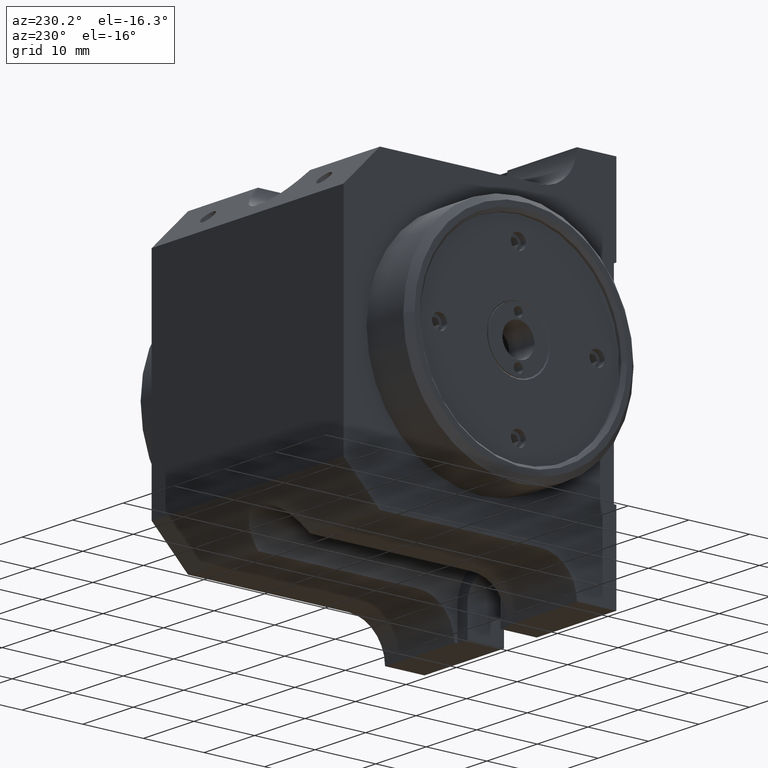
[diagram: clean part render]
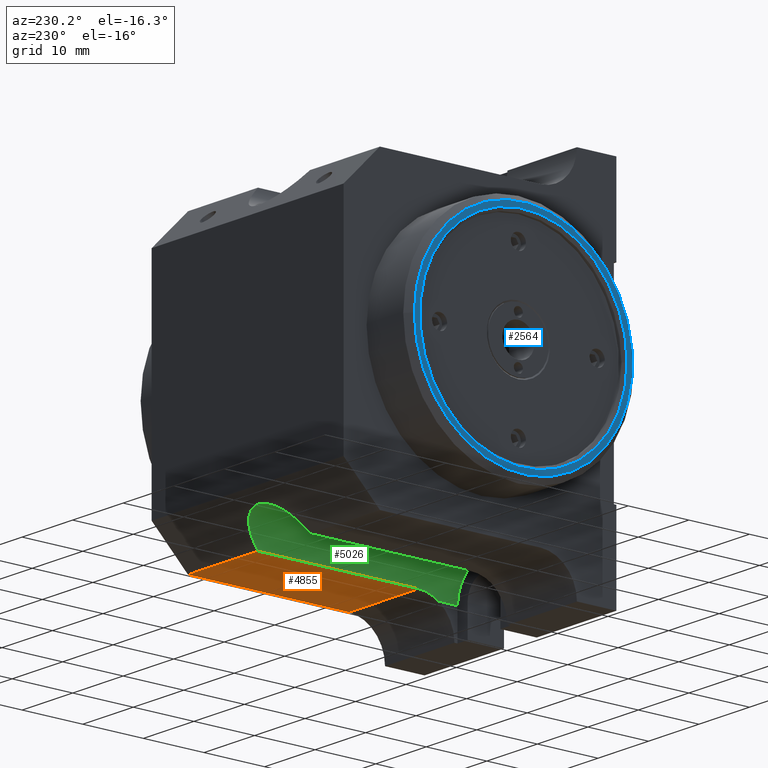
[diagram: same view with three faces highlighted in distinct colors, each labeled with its STEP entity id]
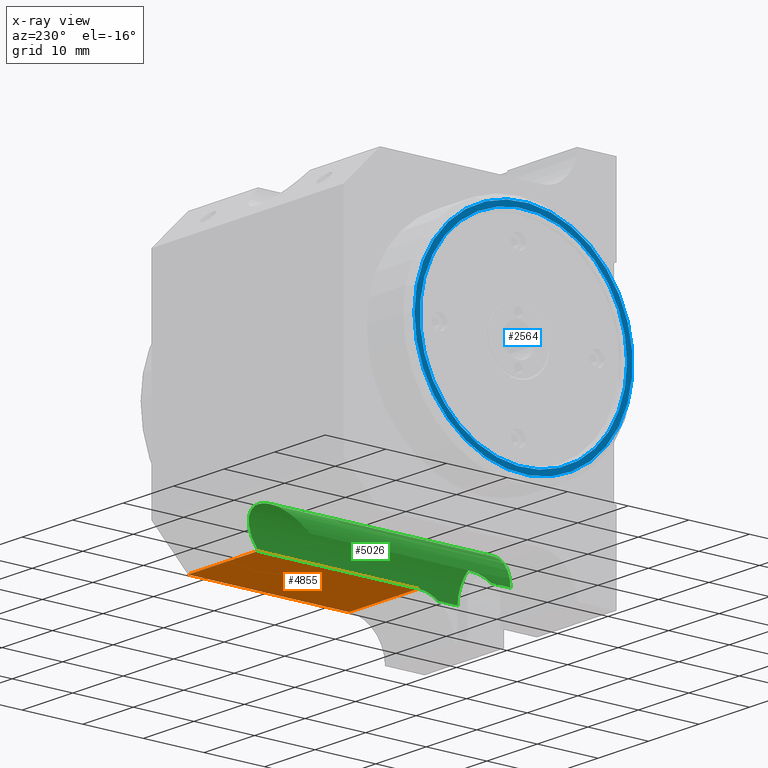
[diagram: x-ray of the same camera — body ghosted, the three highlighted faces saturated]
A machine part, auxiliary view with three faces highlighted in distinct colors.
The next image is the same camera in x-ray (body ghosted, the three faces saturated) — at least one of them is partly hidden behind the body in this view.
Their STEP definitions:

[orange] entity #4855 — the highlighted planar face has unit normal (0, 0, -1).
#123 = VERTEX_POINT ( 'NONE', #3841 ) ;
#297 = LINE ( 'NONE', #4854, #6377 ) ;
#329 = VECTOR ( 'NONE', #2164, 1000.000000000000000 ) ;
#386 = ORIENTED_EDGE ( 'NONE', *, *, #3984, .F. ) ;
#454 = VECTOR ( 'NONE', #4082, 1000.000000000000000 ) ;
#527 = VERTEX_POINT ( 'NONE', #5717 ) ;
#553 = VERTEX_POINT ( 'NONE', #2233 ) ;
#589 = EDGE_CURVE ( 'NONE', #5898, #527, #1663, .T. ) ;
#635 = LINE ( 'NONE', #2616, #454 ) ;
#719 = EDGE_LOOP ( 'NONE', ( #6045, #1636, #386, #6524 ) ) ;
#1450 = EDGE_CURVE ( 'NONE', #527, #553, #635, .T. ) ;
#1459 = AXIS2_PLACEMENT_3D ( 'NONE', #1907, #4555, #1942 ) ;
#1636 = ORIENTED_EDGE ( 'NONE', *, *, #1450, .T. ) ;
#1663 = LINE ( 'NONE', #5212, #329 ) ;
#1877 = PLANE ( 'NONE',  #1459 ) ;
#1907 = CARTESIAN_POINT ( 'NONE',  ( -19.00000000000000000, -12.69999999999999929, -24.00000000000000000 ) ) ;
#1942 = DIRECTION ( 'NONE',  ( -1.000000000000000000, 0.000000000000000000, -0.000000000000000000 ) ) ;
#2164 = DIRECTION ( 'NONE',  ( -1.000000000000000000, 0.000000000000000000, -0.000000000000000000 ) ) ;
#2233 = CARTESIAN_POINT ( 'NONE',  ( 5.153882032022035986, 16.80000000000000071, -24.00000000000000000 ) ) ;
#2616 = CARTESIAN_POINT ( 'NONE',  ( 5.153882032021997794, -12.69999999999999929, -24.00000000000000000 ) ) ;
#2753 = EDGE_CURVE ( 'NONE', #5898, #123, #6097, .T. ) ;
#3540 = DIRECTION ( 'NONE',  ( -0.000000000000000000, 1.000000000000000000, 0.000000000000000000 ) ) ;
#3666 = VECTOR ( 'NONE', #3540, 1000.000000000000000 ) ;
#3841 = CARTESIAN_POINT ( 'NONE',  ( 19.00000000000000355, 16.80000000000000071, -24.00000000000000355 ) ) ;
#3984 = EDGE_CURVE ( 'NONE', #123, #553, #297, .T. ) ;
#4082 = DIRECTION ( 'NONE',  ( 0.000000000000000000, 1.000000000000000000, 0.000000000000000000 ) ) ;
#4555 = DIRECTION ( 'NONE',  ( 0.000000000000000000, 0.000000000000000000, -1.000000000000000000 ) ) ;
#4854 = CARTESIAN_POINT ( 'NONE',  ( 0.000000000000000000, 16.80000000000000071, -24.00000000000000000 ) ) ;
#4855 = ADVANCED_FACE ( 'NONE', ( #5021 ), #1877, .T. ) ;
#5021 = FACE_OUTER_BOUND ( 'NONE', #719, .T. ) ;
#5212 = CARTESIAN_POINT ( 'NONE',  ( -19.00000000000000000, -9.700000000000001066, -24.00000000000000000 ) ) ;
#5481 = CARTESIAN_POINT ( 'NONE',  ( 19.00000000000000000, -9.700000000000001066, -24.00000000000000000 ) ) ;
#5717 = CARTESIAN_POINT ( 'NONE',  ( 5.153882032022036874, -9.700000000000001066, -24.00000000000000000 ) ) ;
#5898 = VERTEX_POINT ( 'NONE', #5481 ) ;
#6045 = ORIENTED_EDGE ( 'NONE', *, *, #589, .T. ) ;
#6097 = LINE ( 'NONE', #6515, #3666 ) ;
#6337 = DIRECTION ( 'NONE',  ( -1.000000000000000000, 0.000000000000000000, -0.000000000000000000 ) ) ;
#6377 = VECTOR ( 'NONE', #6337, 1000.000000000000000 ) ;
#6515 = CARTESIAN_POINT ( 'NONE',  ( 19.00000000000000000, 0.000000000000000000, -24.00000000000000000 ) ) ;
#6524 = ORIENTED_EDGE ( 'NONE', *, *, #2753, .F. ) ;

[blue] entity #2564 — the highlighted planar face has unit normal (1, 0, 0).
#71 = CARTESIAN_POINT ( 'NONE',  ( -27.25000000000003908, -6.952563808119000396E-14, 0.000000000000000000 ) ) ;
#233 = EDGE_LOOP ( 'NONE', ( #3418 ) ) ;
#237 = DIRECTION ( 'NONE',  ( 0.000000000000000000, 1.000000000000000000, 0.000000000000000000 ) ) ;
#331 = CARTESIAN_POINT ( 'NONE',  ( -27.25000000000000000, 0.000000000000000000, 0.000000000000000000 ) ) ;
#357 = CIRCLE ( 'NONE', #6140, 18.00000616290476785 ) ;
#806 = AXIS2_PLACEMENT_3D ( 'NONE', #71, #5230, #5662 ) ;
#867 = FACE_OUTER_BOUND ( 'NONE', #233, .T. ) ;
#1658 = ORIENTED_EDGE ( 'NONE', *, *, #4686, .T. ) ;
#1748 = FACE_BOUND ( 'NONE', #3462, .T. ) ;
#1986 = CIRCLE ( 'NONE', #806, 17.09999999999996234 ) ;
#2042 = VERTEX_POINT ( 'NONE', #6587 ) ;
#2112 = VERTEX_POINT ( 'NONE', #4144 ) ;
#2564 = ADVANCED_FACE ( 'NONE', ( #1748, #867 ), #3352, .F. ) ;
#2591 = EDGE_CURVE ( 'NONE', #2042, #2042, #357, .T. ) ;
#2780 = CARTESIAN_POINT ( 'NONE',  ( -27.25000000000476774, 9.130064163756017171E-17, 0.000000000000000000 ) ) ;
#2874 = DIRECTION ( 'NONE',  ( 0.000000000000000000, 0.000000000000000000, -1.000000000000000000 ) ) ;
#3352 = PLANE ( 'NONE',  #4535 ) ;
#3418 = ORIENTED_EDGE ( 'NONE', *, *, #2591, .F. ) ;
#3462 = EDGE_LOOP ( 'NONE', ( #1658 ) ) ;
#4144 = CARTESIAN_POINT ( 'NONE',  ( -27.25000000000003908, -17.10000000000003340, 0.000000000000000000 ) ) ;
#4382 = DIRECTION ( 'NONE',  ( 1.000000000000000000, -9.130123557770168631E-17, 0.000000000000000000 ) ) ;
#4535 = AXIS2_PLACEMENT_3D ( 'NONE', #331, #4858, #2874 ) ;
#4686 = EDGE_CURVE ( 'NONE', #2112, #2112, #1986, .T. ) ;
#4858 = DIRECTION ( 'NONE',  ( 1.000000000000000000, 0.000000000000000000, 0.000000000000000000 ) ) ;
#5230 = DIRECTION ( 'NONE',  ( 1.000000000000000000, 1.014458173085854187E-16, -0.000000000000000000 ) ) ;
#5662 = DIRECTION ( 'NONE',  ( 0.000000000000000000, -1.000000000000000000, 0.000000000000000000 ) ) ;
#6140 = AXIS2_PLACEMENT_3D ( 'NONE', #2780, #4382, #237 ) ;
#6587 = CARTESIAN_POINT ( 'NONE',  ( -27.25000000000476774, 18.00000616290476785, 0.000000000000000000 ) ) ;

[green] entity #5026 — the highlighted cylindrical surface (partial cylindrical patch) has radius 5.25 mm, axis along (0, 1, 0).
#2 = VERTEX_POINT ( 'NONE', #575 ) ;
#92 = CARTESIAN_POINT ( 'NONE',  ( -5.250000000000000000, 22.80000000000000071, -25.00000000000000000 ) ) ;
#146 = CARTESIAN_POINT ( 'NONE',  ( -5.153882032022074178, -9.700000000000001066, -23.99999999999999645 ) ) ;
#171 = CARTESIAN_POINT ( 'NONE',  ( 5.250000000000000888, -13.01662479035699960, -25.00000000000105871 ) ) ;
#217 = CARTESIAN_POINT ( 'NONE',  ( -5.222002669266132990, -11.98477250848357478, -24.44432261138410567 ) ) ;
#282 = ORIENTED_EDGE ( 'NONE', *, *, #6381, .F. ) ;
#310 = CARTESIAN_POINT ( 'NONE',  ( -5.153882032022073290, 16.80000000000000782, -23.99999999999999289 ) ) ;
#441 = VECTOR ( 'NONE', #5948, 1000.000000000000000 ) ;
#454 = VECTOR ( 'NONE', #4082, 1000.000000000000000 ) ;
#495 = CARTESIAN_POINT ( 'NONE',  ( -5.153882032022074178, -10.29062054748082566, -24.00000000000000355 ) ) ;
#527 = VERTEX_POINT ( 'NONE', #5717 ) ;
#553 = VERTEX_POINT ( 'NONE', #2233 ) ;
#575 = CARTESIAN_POINT ( 'NONE',  ( -5.250000000000000888, -16.19999999999999929, -25.00000000000000000 ) ) ;
#635 = LINE ( 'NONE', #2616, #454 ) ;
#641 = CIRCLE ( 'NONE', #2877, 5.250000000000000888 ) ;
#654 = CARTESIAN_POINT ( 'NONE',  ( -5.250000000000000888, -13.01662479035699960, -25.00000000000105871 ) ) ;
#676 = ORIENTED_EDGE ( 'NONE', *, *, #5214, .T. ) ;
#781 = CARTESIAN_POINT ( 'NONE',  ( 5.153882032022036874, -9.700000000000001066, -24.00000000000000000 ) ) ;
#811 = VECTOR ( 'NONE', #5628, 1000.000000000000000 ) ;
#882 = CARTESIAN_POINT ( 'NONE',  ( -3.732121471464261653, 24.12758620689654165, -16.67241379310346616 ) ) ;
#1021 = VERTEX_POINT ( 'NONE', #146 ) ;
#1148 = DIRECTION ( 'NONE',  ( 0.000000000000000000, 0.000000000000000000, 1.000000000000000000 ) ) ;
#1450 = EDGE_CURVE ( 'NONE', #527, #553, #635, .T. ) ;
#1608 = VERTEX_POINT ( 'NONE', #4981 ) ;
#1673 = DIRECTION ( 'NONE',  ( 0.000000000000000000, 1.000000000000000000, 0.000000000000000000 ) ) ;
#2144 = CARTESIAN_POINT ( 'NONE',  ( -5.250000000000000888, -13.01662479035699960, -25.00000000000105871 ) ) ;
#2233 = CARTESIAN_POINT ( 'NONE',  ( 5.153882032022035986, 16.80000000000000071, -24.00000000000000000 ) ) ;
#2407 = ORIENTED_EDGE ( 'NONE', *, *, #6548, .F. ) ;
#2480 = VECTOR ( 'NONE', #3576, 1000.000000000000000 ) ;
#2539 = CARTESIAN_POINT ( 'NONE',  ( -5.172517357527846471, -10.86626161810671043, -24.08532210247701855 ) ) ;
#2609 = LINE ( 'NONE', #2671, #811 ) ;
#2616 = CARTESIAN_POINT ( 'NONE',  ( 5.153882032021997794, -12.69999999999999929, -24.00000000000000000 ) ) ;
#2622 = DIRECTION ( 'NONE',  ( 0.000000000000000000, 1.000000000000000000, 0.000000000000000000 ) ) ;
#2671 = CARTESIAN_POINT ( 'NONE',  ( -5.153882032022072401, 22.80000000000000071, -23.99999999999998579 ) ) ;
#2823 = CARTESIAN_POINT ( 'NONE',  ( 5.153882032022074178, -10.29062054748082922, -24.00000000000000355 ) ) ;
#2877 = AXIS2_PLACEMENT_3D ( 'NONE', #4692, #2622, #1148 ) ;
#3075 = CARTESIAN_POINT ( 'NONE',  ( 5.222002669266132990, -11.98477250848357656, -24.44432261138410567 ) ) ;
#3144 = FACE_OUTER_BOUND ( 'NONE', #3246, .T. ) ;
#3240 = CARTESIAN_POINT ( 'NONE',  ( -5.208854299338961269, -11.70826301387560164, -24.33848298903658147 ) ) ;
#3246 = EDGE_LOOP ( 'NONE', ( #4895, #676, #5407, #2407, #5925, #6094, #3262, #282 ) ) ;
#3262 = ORIENTED_EDGE ( 'NONE', *, *, #5012, .F. ) ;
#3576 = DIRECTION ( 'NONE',  ( -0.000000000000000000, -1.000000000000000000, -0.000000000000000000 ) ) ;
#3728 = CARTESIAN_POINT ( 'NONE',  ( -5.242514510225865898, -12.51487667848593155, -24.69319249012966111 ) ) ;
#3822 = CARTESIAN_POINT ( 'NONE',  ( 3.732121471464257212, 24.12758620689655231, -16.67241379310345550 ) ) ;
#3827 = CARTESIAN_POINT ( 'NONE',  ( -5.153882032022073290, 16.80000000000000782, -23.99999999999999289 ) ) ;
#3838 = VERTEX_POINT ( 'NONE', #2144 ) ;
#4082 = DIRECTION ( 'NONE',  ( 0.000000000000000000, 1.000000000000000000, 0.000000000000000000 ) ) ;
#4095 =( BOUNDED_CURVE ( )  B_SPLINE_CURVE ( 3, ( #4898, #3822, #882, #310 ),
 .UNSPECIFIED., .F., .T. ) 
 B_SPLINE_CURVE_WITH_KNOTS ( ( 4, 4 ),
 ( 4.904036175360107386, 7.662334438999065966 ),
 .UNSPECIFIED. ) 
 CURVE ( )  GEOMETRIC_REPRESENTATION_ITEM ( )  RATIONAL_B_SPLINE_CURVE ( ( 1.000000000000000000, 0.4603174603174609025, 0.4603174603174609025, 1.000000000000000000 ) ) 
 REPRESENTATION_ITEM ( '' )  );
#4173 = CARTESIAN_POINT ( 'NONE',  ( 5.242514510225865898, -12.51487667848593155, -24.69319249012966111 ) ) ;
#4235 = AXIS2_PLACEMENT_3D ( 'NONE', #4615, #1673, #5691 ) ;
#4335 = B_SPLINE_CURVE_WITH_KNOTS ( 'NONE', 3,
 ( #781, #2823, #4867, #4361, #3075, #4173, #5153, #6230 ),
 .UNSPECIFIED., .F., .F.,
 ( 4, 2, 2, 4 ),
 ( 1.734723475976807094E-18, 0.001746281794024640227, 0.002619422691036960883, 0.003492563588049281756 ),
 .UNSPECIFIED. ) ;
#4361 = CARTESIAN_POINT ( 'NONE',  ( 5.208854299338961269, -11.70826301387560342, -24.33848298903658147 ) ) ;
#4463 = CARTESIAN_POINT ( 'NONE',  ( 5.250000000000000000, 22.80000000000000071, -25.00000000000000000 ) ) ;
#4615 = CARTESIAN_POINT ( 'NONE',  ( 0.000000000000000000, 22.80000000000000071, -25.00000000000000000 ) ) ;
#4643 = VERTEX_POINT ( 'NONE', #171 ) ;
#4692 = CARTESIAN_POINT ( 'NONE',  ( 0.000000000000000000, -16.19999999999999929, -25.00000000000000000 ) ) ;
#4841 = CARTESIAN_POINT ( 'NONE',  ( -5.250000000000064837, -12.77052016727262718, -24.83675266121229441 ) ) ;
#4867 = CARTESIAN_POINT ( 'NONE',  ( 5.172517357527846471, -10.86626161810671043, -24.08532210247701855 ) ) ;
#4895 = ORIENTED_EDGE ( 'NONE', *, *, #1450, .F. ) ;
#4898 = CARTESIAN_POINT ( 'NONE',  ( 5.153882032022035986, 16.80000000000000071, -24.00000000000000000 ) ) ;
#4981 = CARTESIAN_POINT ( 'NONE',  ( 5.250000000000000000, -16.19999999999999929, -25.00000000000000000 ) ) ;
#5012 = EDGE_CURVE ( 'NONE', #5987, #1021, #2609, .T. ) ;
#5026 = ADVANCED_FACE ( 'NONE', ( #3144 ), #5221, .F. ) ;
#5084 = CARTESIAN_POINT ( 'NONE',  ( -5.153882032022074178, -9.700000000000001066, -23.99999999999999645 ) ) ;
#5110 = EDGE_CURVE ( 'NONE', #3838, #2, #6133, .T. ) ;
#5127 = B_SPLINE_CURVE_WITH_KNOTS ( 'NONE', 3,
 ( #5084, #495, #2539, #3240, #217, #3728, #4841, #654 ),
 .UNSPECIFIED., .F., .F.,
 ( 4, 2, 2, 4 ),
 ( 0.000000000000000000, 0.001746281794024639360, 0.002619422691036960450, 0.003492563588049281756 ),
 .UNSPECIFIED. ) ;
#5153 = CARTESIAN_POINT ( 'NONE',  ( 5.250000000000064837, -12.77052016727262540, -24.83675266121229441 ) ) ;
#5214 = EDGE_CURVE ( 'NONE', #527, #4643, #4335, .T. ) ;
#5221 = CYLINDRICAL_SURFACE ( 'NONE', #4235, 5.250000000000000888 ) ;
#5407 = ORIENTED_EDGE ( 'NONE', *, *, #6308, .F. ) ;
#5628 = DIRECTION ( 'NONE',  ( -0.000000000000000000, -1.000000000000000000, -0.000000000000000000 ) ) ;
#5691 = DIRECTION ( 'NONE',  ( 0.000000000000000000, 0.000000000000000000, 1.000000000000000000 ) ) ;
#5717 = CARTESIAN_POINT ( 'NONE',  ( 5.153882032022036874, -9.700000000000001066, -24.00000000000000000 ) ) ;
#5765 = EDGE_CURVE ( 'NONE', #1021, #3838, #5127, .T. ) ;
#5925 = ORIENTED_EDGE ( 'NONE', *, *, #5110, .F. ) ;
#5948 = DIRECTION ( 'NONE',  ( 0.000000000000000000, 1.000000000000000000, 0.000000000000000000 ) ) ;
#5987 = VERTEX_POINT ( 'NONE', #3827 ) ;
#6094 = ORIENTED_EDGE ( 'NONE', *, *, #5765, .F. ) ;
#6133 = LINE ( 'NONE', #92, #2480 ) ;
#6230 = CARTESIAN_POINT ( 'NONE',  ( 5.250000000000000888, -13.01662479035699960, -25.00000000000105871 ) ) ;
#6308 = EDGE_CURVE ( 'NONE', #1608, #4643, #6393, .T. ) ;
#6381 = EDGE_CURVE ( 'NONE', #553, #5987, #4095, .T. ) ;
#6393 = LINE ( 'NONE', #4463, #441 ) ;
#6548 = EDGE_CURVE ( 'NONE', #2, #1608, #641, .T. ) ;